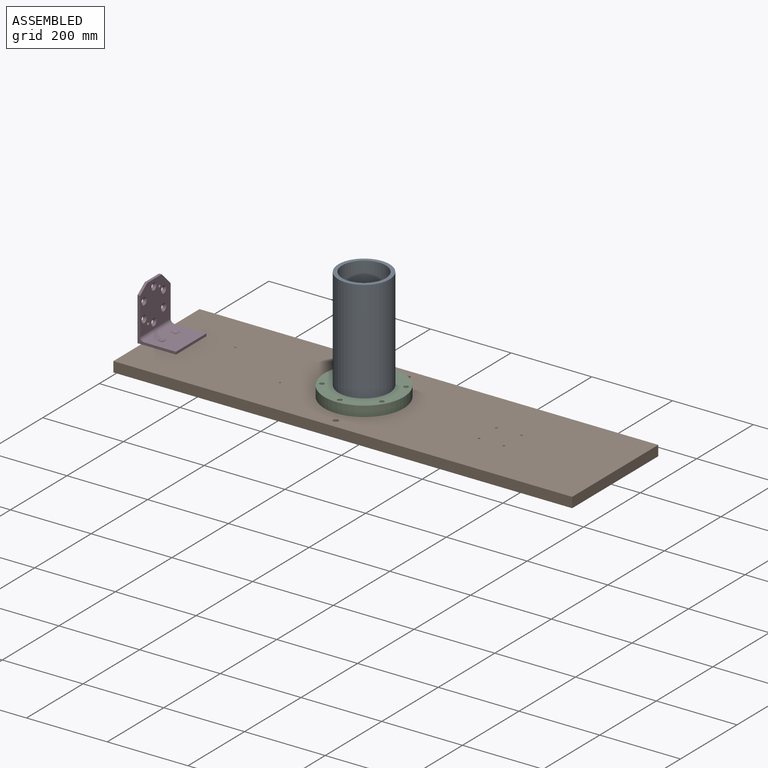
[diagram: assembled view]
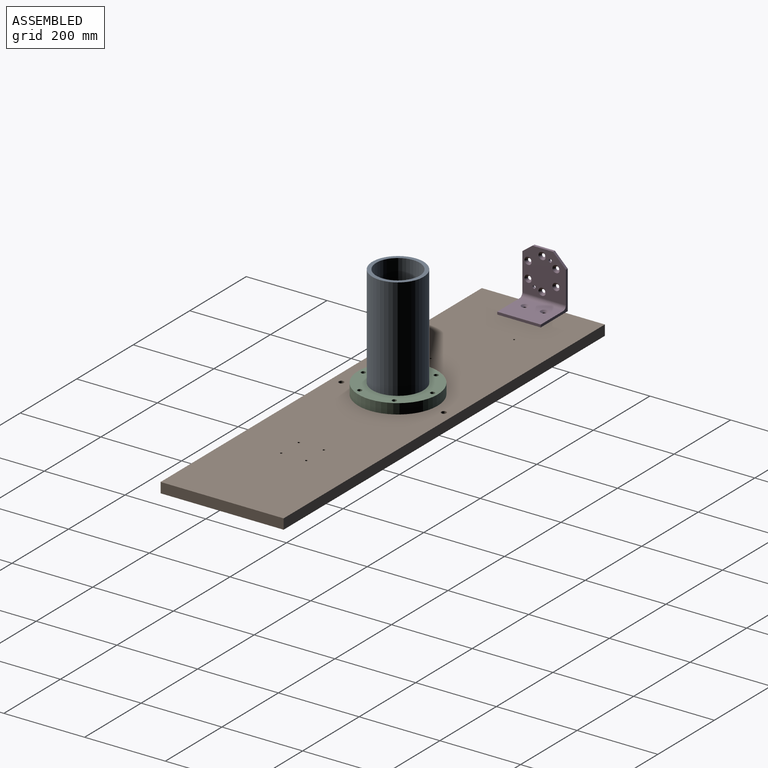
[diagram: assembled view, second angle]
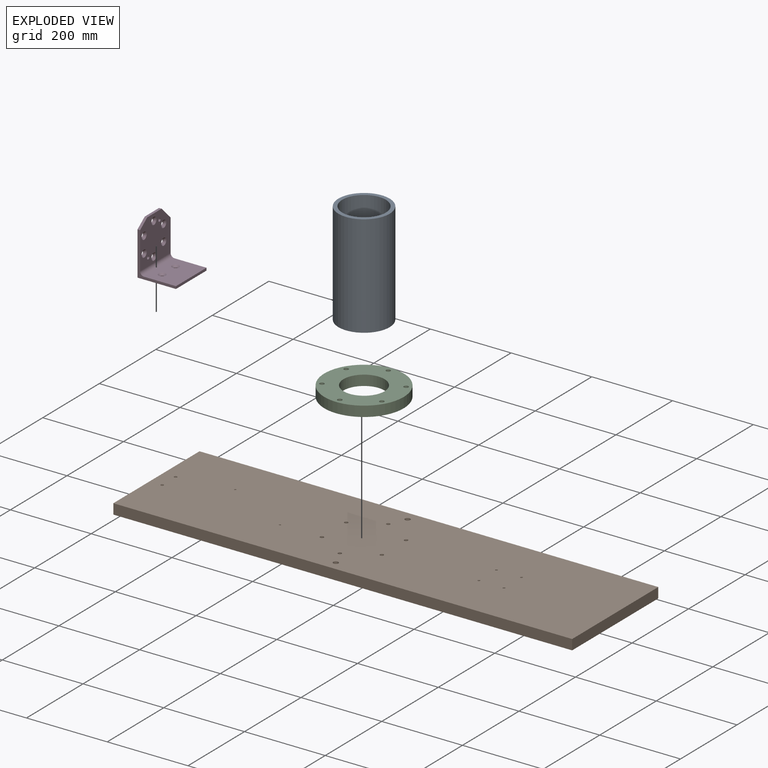
[diagram: exploded view]
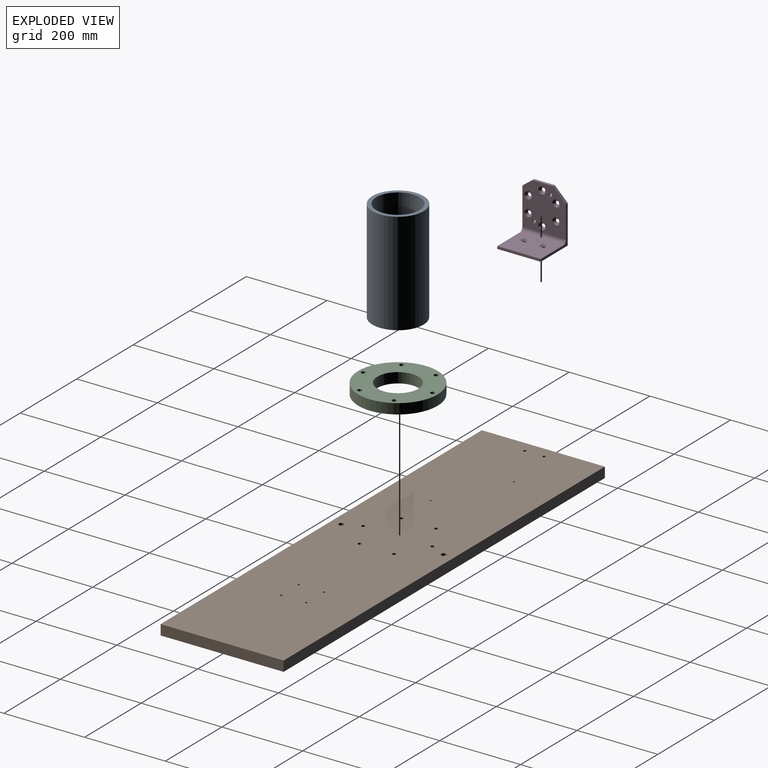
[diagram: exploded view, second angle]
ASSEMBLY  parts=4 mates=3
PART A: 4 faces, bbox 127x127x254 mm
  f0: cylinder r=63.5mm len=254mm, axis (0,0,-1), area 101341.5mm2, adj f1,f2
  f1: plane 127x127mm, normal (0,0,1), area 3515.3mm2, adj f0,f3
  f2: plane 127x127mm, normal (0,0,-1), area 3515.3mm2, adj f0,f3
  f3: cylinder r=53.98mm len=254mm, axis (0,0,-1), area 86140.3mm2, adj f1,f2
PART B: 22 faces, bbox 1136.7x304.8x25.4 mm
  f0: plane 1136.65x25.4mm, normal (0,-1,0), area 28870.9mm2, adj f1,f3,f4,f5
  f1: plane 304.8x25.4mm, normal (1,0,0), area 7741.9mm2, adj f0,f2,f4,f5
  f2: plane 1136.65x25.4mm, normal (0,1,0), area 28870.9mm2, adj f1,f3,f4,f5
  f3: plane 304.8x25.4mm, normal (-1,0,0), area 7741.9mm2, adj f0,f2,f4,f5
  f4: plane 1136.65x304.8mm, normal (0,0,1), area 345611mm2, adj f0,f1,f2,f3,f6,f7,f8,f9
  f5: plane 1136.65x304.8mm, normal (0,0,-1), area 345611mm2, adj f0,f1,f2,f3,f6,f7,f8,f9
  f6: cylinder r=3.6mm len=25.4mm, axis (0,0,1), area 574.5mm2, adj f4,f5
  f7: cylinder r=3.6mm len=25.4mm, axis (0,0,1), area 574.5mm2, adj f4,f5
  f8: cylinder r=4.5mm len=25.4mm, axis (0,0,1), area 718.2mm2, adj f4,f5
  f9: cylinder r=4.5mm len=25.4mm, axis (0,0,1), area 718.2mm2, adj f4,f5
  f10: cylinder r=4.5mm len=25.4mm, axis (0,0,1), area 718.2mm2, adj f4,f5
  f11: cylinder r=4.5mm len=25.4mm, axis (0,0,1), area 718.2mm2, adj f4,f5
  f12: cylinder r=4.5mm len=25.4mm, axis (0,0,1), area 718.2mm2, adj f4,f5
  f13: cylinder r=4.5mm len=25.4mm, axis (0,0,1), area 718.2mm2, adj f4,f5
  f14: cylinder r=6.35mm len=25.4mm, axis (0,0,1), area 1013.4mm2, adj f4,f5
  f15: cylinder r=6.35mm len=25.4mm, axis (0,0,1), area 1013.4mm2, adj f4,f5
  f16: cylinder r=2.25mm len=25.4mm, axis (0,0,1), area 359.1mm2, adj f4,f5
  f17: cylinder r=2.25mm len=25.4mm, axis (0,0,1), area 359.1mm2, adj f4,f5
  f18: cylinder r=2.7mm len=25.4mm, axis (0,0,1), area 430.9mm2, adj f4,f5
  f19: cylinder r=2.7mm len=25.4mm, axis (0,0,1), area 430.9mm2, adj f4,f5
  f20: cylinder r=2.7mm len=25.4mm, axis (0,0,1), area 430.9mm2, adj f4,f5
  f21: cylinder r=2.7mm len=25.4mm, axis (0,0,1), area 430.9mm2, adj f4,f5
PART C: 10 faces, bbox 196.9x196.9x25.4 mm
  f0: cylinder r=98.42mm len=196.85mm, axis (0,0,-1), area 15707.9mm2, adj f1,f2
  f1: plane 196.85x196.85mm, normal (0,0,1), area 21756.6mm2, adj f0,f3,f4,f5,f6,f7,f8,f9
  f2: plane 196.85x196.85mm, normal (0,0,-1), area 21756.6mm2, adj f0,f3,f4,f5,f6,f7,f8,f9
  f3: cylinder r=5.5mm len=25.4mm, axis (0,0,1), area 877.8mm2, adj f1,f2
  f4: cylinder r=5.5mm len=25.4mm, axis (0,0,1), area 877.8mm2, adj f1,f2
  f5: cylinder r=5.5mm len=25.4mm, axis (0,0,1), area 877.8mm2, adj f1,f2
  f6: cylinder r=5.5mm len=25.4mm, axis (0,0,1), area 877.8mm2, adj f1,f2
  f7: cylinder r=5.5mm len=25.4mm, axis (0,0,1), area 877.8mm2, adj f1,f2
  f8: cylinder r=5.5mm len=25.4mm, axis (0,0,1), area 877.8mm2, adj f1,f2
  f9: cylinder r=50.8mm len=101.6mm, axis (0,0,1), area 8107.3mm2, adj f1,f2
PART D: 29 faces, bbox 108x95.3x127 mm
  f0: plane 50.8x6.35mm, normal (0,0,1), area 322.6mm2, adj f1,f5,f27,f28
  f1: plane 111.13x107.95mm, normal (0,-1,0), area 9638.7mm2, adj f0,f2,f3,f9,f11,f13,f15,f17
  f2: plane 95.25x95.25mm, normal (1,0,0), area 1188.8mm2, adj f1,f4,f5,f6,f7,f22,f27
  f3: plane 107.95x95.25mm, normal (-1,0,0), area 1269.5mm2, adj f1,f4,f5,f6,f7,f22,f28
  f4: plane 107.95x95.25mm, normal (0,0,-1), area 10155mm2, adj f2,f3,f5,f7,f23,f25
  f5: plane 127x107.95mm, normal (0,1,0), area 12483.9mm2, adj f0,f2,f3,f4,f8,f10,f12,f14
  f6: plane 107.95x79.38mm, normal (0,0,1), area 8064.1mm2, adj f2,f3,f7,f22,f24,f26
  f7: plane 107.95x6.35mm, normal (0,-1,0), area 685.5mm2, adj f2,f3,f4,f6
  f8: cylinder r=4.5mm len=9mm, axis (0,-1,0), area 53.4mm2, adj f5,f9
  f9: cone r=4.5mm half-angle=45deg, axis (0,-1,0), area 266.7mm2, adj f1,f8
  f10: cylinder r=4.5mm len=9mm, axis (0,-1,0), area 53.4mm2, adj f5,f11
  f11: cone r=4.5mm half-angle=45deg, axis (0,-1,0), area 266.7mm2, adj f1,f10
  f12: cylinder r=4.5mm len=9mm, axis (0,-1,0), area 53.4mm2, adj f5,f13
  f13: cone r=4.5mm half-angle=45deg, axis (0,-1,0), area 266.7mm2, adj f1,f12
  f14: cylinder r=4.5mm len=9mm, axis (0,-1,0), area 53.4mm2, adj f5,f15
  f15: cone r=4.5mm half-angle=45deg, axis (0,-1,0), area 266.7mm2, adj f1,f14
  f16: cylinder r=4.5mm len=9mm, axis (0,-1,0), area 53.4mm2, adj f5,f17
  f17: cone r=4.5mm half-angle=45deg, axis (0,-1,0), area 266.7mm2, adj f1,f16
  f18: cylinder r=4.5mm len=9mm, axis (0,-1,0), area 53.4mm2, adj f5,f19
  f19: cone r=4.5mm half-angle=45deg, axis (0,-1,0), area 266.7mm2, adj f1,f18
  f20: cylinder r=3.95mm len=7.9mm, axis (0,1,0), area 157.6mm2, adj f1,f5
  f21: cylinder r=3.95mm len=7.9mm, axis (0,1,0), area 157.6mm2, adj f1,f5
  f22: cylinder r=9.53mm len=107.95mm, axis (-1,0,0), area 1615.1mm2, adj f1,f2,f3,f6
  f23: cylinder r=4.5mm len=9mm, axis (0,0,1), area 53.4mm2, adj f4,f24
  f24: cone r=4.5mm half-angle=45deg, axis (0,0,1), area 266.7mm2, adj f6,f23
  f25: cylinder r=4.5mm len=9mm, axis (0,0,1), area 53.4mm2, adj f4,f26
  f26: cone r=4.5mm half-angle=45deg, axis (0,0,1), area 266.7mm2, adj f6,f25
  f27: plane 31.75x31.75mm, normal (0.71,0,0.71), area 285.1mm2, adj f0,f1,f2,f5
  f28: plane 25.4x19.05mm, normal (-0.6,0,0.8), area 201.6mm2, adj f0,f1,f3,f5
PLACE A rot(axis=(-0.79,0.55,-0.27),0deg) t=(-478.72,21.12,269.39)mm
PLACE B rot(axis=(-0.79,0.55,-0.27),0deg) t=(-424.75,21.12,91.59)mm fixed
PLACE C rot(axis=(-0.79,0.55,-0.27),0deg) t=(-478.72,21.12,116.99)mm
PLACE D rot(axis=(0,0,1),90deg) t=(-998.94,21.12,180.49)mm
MATE fastened C.f6 <-> B.f11  axis (0,0,-1) through (-478.72,-64.61,116.99)mm
MATE fastened A.f0 <-> C.f0  axis (0,0,-1) through (-478.72,21.12,142.39)mm
MATE fastened D.f23 <-> B.f7  axis (0,0,-1) through (-962.11,-2.69,116.99)mm
